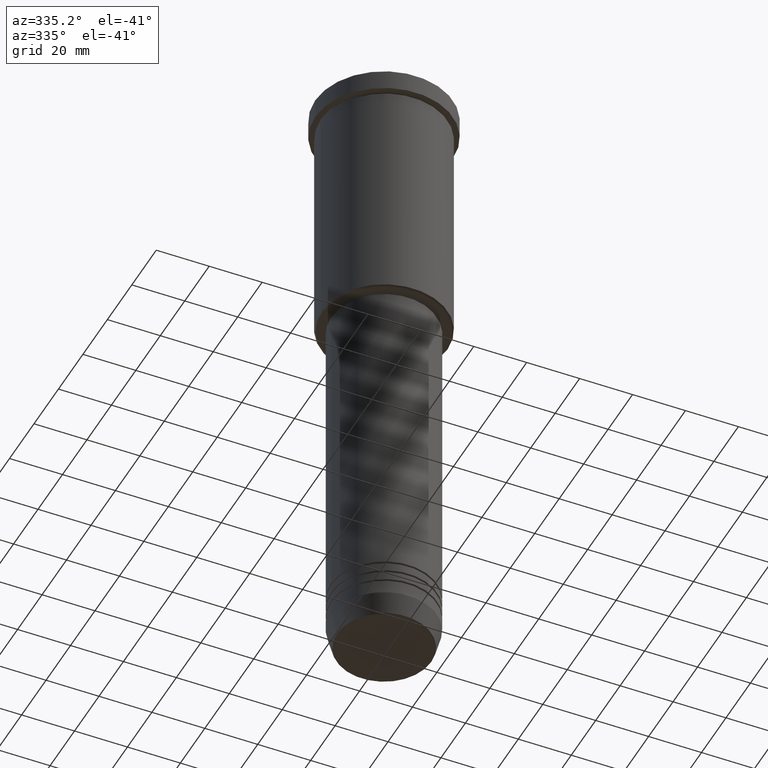
[diagram: clean part render]
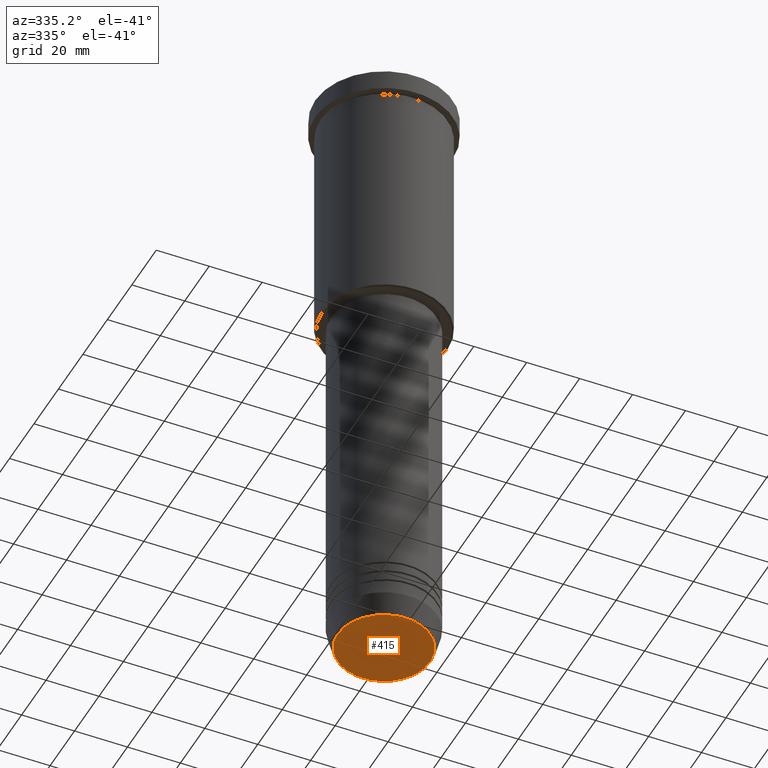
[diagram: same view with one face highlighted and labeled with its STEP entity id]
A machine part, auxiliary view. The second image highlights one B-rep face of the part: STEP entity #415.
In plain terms, the highlighted planar face has unit normal (0, -0, 1).
Its self-contained STEP definition (entity closure, byte-faithful):
#29 = CIRCLE ( 'NONE', #191, 17.47274296656154036 ) ;
#45 = DIRECTION ( 'NONE',  ( 0.000000000000000000, 0.000000000000000000, -1.000000000000000000 ) ) ;
#145 = CARTESIAN_POINT ( 'NONE',  ( 0.000000000000000000, 0.000000000000000000, -240.0000000000000000 ) ) ;
#148 = AXIS2_PLACEMENT_3D ( 'NONE', #450, #287, #443 ) ;
#161 = CARTESIAN_POINT ( 'NONE',  ( -17.47274296656154036, 2.169366823916868503E-15, -240.0000000000000000 ) ) ;
#191 = AXIS2_PLACEMENT_3D ( 'NONE', #891, #256, #763 ) ;
#214 = ORIENTED_EDGE ( 'NONE', *, *, #321, .T. ) ;
#242 = DIRECTION ( 'NONE',  ( 1.000000000000000000, 0.000000000000000000, 0.000000000000000000 ) ) ;
#256 = DIRECTION ( 'NONE',  ( 0.000000000000000000, 0.000000000000000000, -1.000000000000000000 ) ) ;
#280 = FACE_OUTER_BOUND ( 'NONE', #621, .T. ) ;
#287 = DIRECTION ( 'NONE',  ( 0.000000000000000000, -0.000000000000000000, 1.000000000000000000 ) ) ;
#321 = EDGE_CURVE ( 'NONE', #745, #736, #29, .T. ) ;
#415 = ADVANCED_FACE ( 'NONE', ( #280 ), #611, .F. ) ;
#443 = DIRECTION ( 'NONE',  ( 1.000000000000000000, 0.000000000000000000, 0.000000000000000000 ) ) ;
#450 = CARTESIAN_POINT ( 'NONE',  ( 0.000000000000000000, 0.000000000000000000, -240.0000000000000000 ) ) ;
#611 = PLANE ( 'NONE',  #148 ) ;
#621 = EDGE_LOOP ( 'NONE', ( #642, #214 ) ) ;
#635 = CIRCLE ( 'NONE', #793, 17.47274296656154036 ) ;
#642 = ORIENTED_EDGE ( 'NONE', *, *, #1078, .T. ) ;
#736 = VERTEX_POINT ( 'NONE', #1173 ) ;
#745 = VERTEX_POINT ( 'NONE', #161 ) ;
#763 = DIRECTION ( 'NONE',  ( 1.000000000000000000, 0.000000000000000000, 0.000000000000000000 ) ) ;
#793 = AXIS2_PLACEMENT_3D ( 'NONE', #145, #45, #242 ) ;
#891 = CARTESIAN_POINT ( 'NONE',  ( 0.000000000000000000, 0.000000000000000000, -240.0000000000000000 ) ) ;
#1078 = EDGE_CURVE ( 'NONE', #736, #745, #635, .T. ) ;
#1173 = CARTESIAN_POINT ( 'NONE',  ( 17.47274296656154036, 0.000000000000000000, -240.0000000000000000 ) ) ;